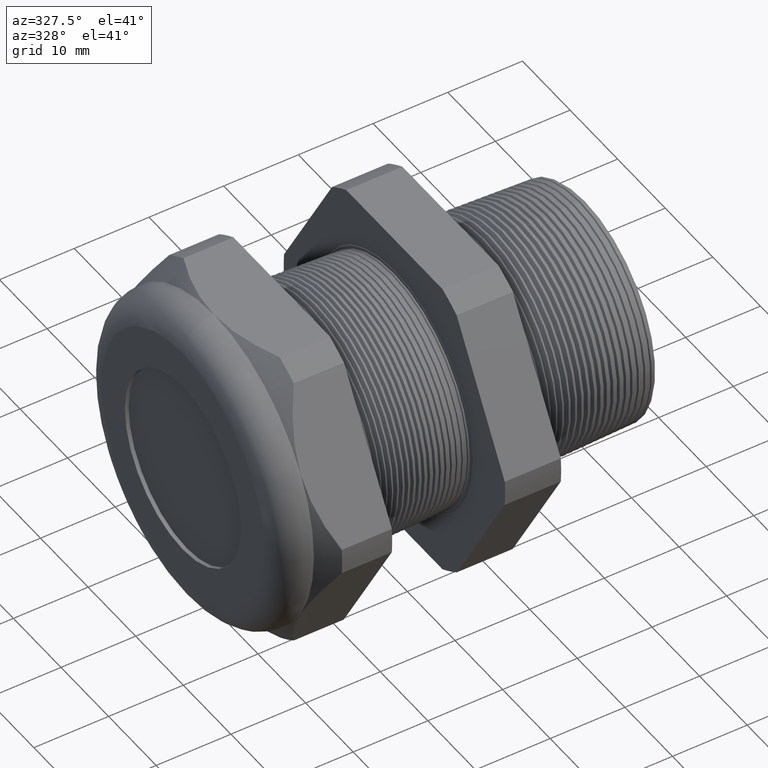
[diagram: clean part render]
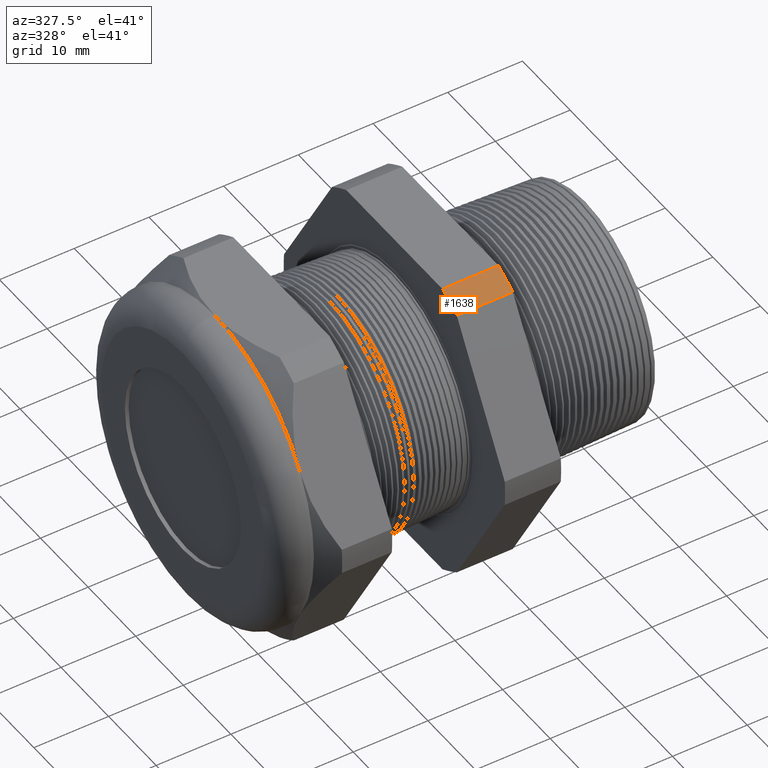
[diagram: same view with one face highlighted and labeled with its STEP entity id]
A machine part, auxiliary view. The second image highlights one B-rep face of the part: STEP entity #1638.
In plain terms, the highlighted cylindrical surface (partial cylindrical patch) has radius 23.26 mm, axis along (-1, 0, 0).
Its self-contained STEP definition (entity closure, byte-faithful):
#1456 = VERTEX_POINT ( 'NONE', #5283 ) ;
#1537 = VERTEX_POINT ( 'NONE', #5447 ) ;
#1539 = EDGE_CURVE ( 'NONE', #1537, #1456, #5445, .T. ) ;
#1619 = VERTEX_POINT ( 'NONE', #5588 ) ;
#1621 = EDGE_CURVE ( 'NONE', #1619, #1622, #5587, .T. ) ;
#1622 = VERTEX_POINT ( 'NONE', #5581 ) ;
#1636 = EDGE_CURVE ( 'NONE', #1537, #1622, #5569, .T. ) ;
#1638 = ADVANCED_FACE ( 'NONE', ( #5565 ), #5563, .T. ) ;
#1639 = EDGE_LOOP ( 'NONE', ( #1640, #1641, #1642, #1644 ) ) ;
#1640 = ORIENTED_EDGE ( 'NONE', *, *, #1636, .T. ) ;
#1641 = ORIENTED_EDGE ( 'NONE', *, *, #1621, .F. ) ;
#1642 = ORIENTED_EDGE ( 'NONE', *, *, #1643, .F. ) ;
#1643 = EDGE_CURVE ( 'NONE', #1456, #1619, #5564, .T. ) ;
#1644 = ORIENTED_EDGE ( 'NONE', *, *, #1539, .F. ) ;
#5283 = CARTESIAN_POINT ( 'NONE',  ( -0.3100000000000000000, -0.5157418318598047100, 0.7567089436301734900 ) ) ;
#5440 = DIRECTION ( 'NONE',  ( 0.0000000000000000000, 0.0000000000000000000, -1.000000000000000000 ) ) ;
#5441 = DIRECTION ( 'NONE',  ( 1.000000000000000000, 0.0000000000000000000, 0.0000000000000000000 ) ) ;
#5442 = CARTESIAN_POINT ( 'NONE',  ( -0.3100000000000000000, 0.0000000000000000000, 0.0000000000000000000 ) ) ;
#5443 = AXIS2_PLACEMENT_3D ( 'NONE', #5442, #5441, #5440 ) ;
#5445 = CIRCLE ( 'NONE', #5443, 0.9157500000000000600 ) ;
#5447 = CARTESIAN_POINT ( 'NONE',  ( -0.3100000000000000000, -0.3974582525247157800, 0.8249999999999995100 ) ) ;
#5558 = CARTESIAN_POINT ( 'NONE',  ( 0.4000000000000000800, -0.5157418318598047100, 0.7567089436301734900 ) ) ;
#5559 = DIRECTION ( 'NONE',  ( 0.0000000000000000000, 0.0000000000000000000, 1.000000000000000000 ) ) ;
#5560 = DIRECTION ( 'NONE',  ( -1.000000000000000000, 0.0000000000000000000, 0.0000000000000000000 ) ) ;
#5561 = CARTESIAN_POINT ( 'NONE',  ( 0.4000000000000000800, 0.0000000000000000000, 0.0000000000000000000 ) ) ;
#5562 = AXIS2_PLACEMENT_3D ( 'NONE', #5561, #5560, #5559 ) ;
#5563 = CYLINDRICAL_SURFACE ( 'NONE', #5562, 0.9157500000000000600 ) ;
#5564 = LINE ( 'NONE', #5558, #5625 ) ;
#5565 = FACE_OUTER_BOUND ( 'NONE', #1639, .T. ) ;
#5566 = DIRECTION ( 'NONE',  ( -1.000000000000000000, 0.0000000000000000000, 0.0000000000000000000 ) ) ;
#5567 = VECTOR ( 'NONE', #5566, 39.37007874015748100 ) ;
#5568 = CARTESIAN_POINT ( 'NONE',  ( 0.4000000000000000800, -0.3974582525247157800, 0.8249999999999995100 ) ) ;
#5569 = LINE ( 'NONE', #5568, #5567 ) ;
#5581 = CARTESIAN_POINT ( 'NONE',  ( -0.6052755905511810800, -0.3974582525247157800, 0.8249999999999995100 ) ) ;
#5582 = DIRECTION ( 'NONE',  ( 0.0000000000000000000, 0.0000000000000000000, 1.000000000000000000 ) ) ;
#5583 = DIRECTION ( 'NONE',  ( -1.000000000000000000, 0.0000000000000000000, 0.0000000000000000000 ) ) ;
#5585 = CARTESIAN_POINT ( 'NONE',  ( -0.6052755905511810800, 0.0000000000000000000, 0.0000000000000000000 ) ) ;
#5586 = AXIS2_PLACEMENT_3D ( 'NONE', #5585, #5583, #5582 ) ;
#5587 = CIRCLE ( 'NONE', #5586, 0.9157500000000000600 ) ;
#5588 = CARTESIAN_POINT ( 'NONE',  ( -0.6052755905511810800, -0.5157418318598047100, 0.7567089436301734900 ) ) ;
#5624 = DIRECTION ( 'NONE',  ( -1.000000000000000000, 0.0000000000000000000, 0.0000000000000000000 ) ) ;
#5625 = VECTOR ( 'NONE', #5624, 39.37007874015748100 ) ;